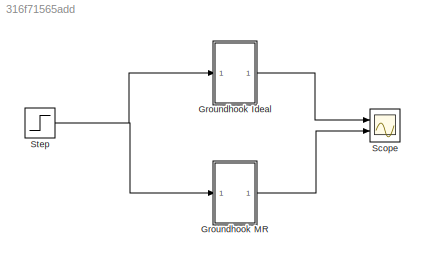
MODEL slx_316f71565add
KIND model
CONFIG AbsTol = auto
CONFIG FixedStep = auto
CONFIG MaxStep = auto
CONFIG MinStep = auto
CONFIG RelTol = 1e-3
CONFIG SampleTimeConstraint = Unconstrained
CONFIG Solver = VariableStepAuto
CONFIG SolverMode = Auto
CONFIG SolverName = VariableStepAuto
CONFIG StartTime = 0.0
CONFIG StopTime = 10.0
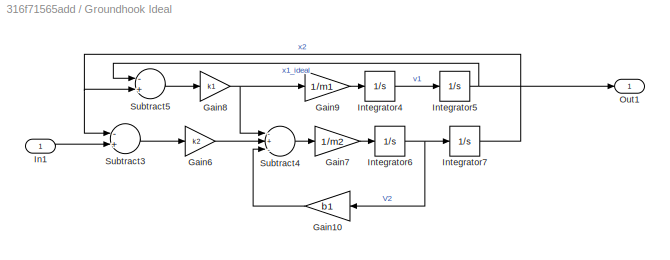
BLOCK [SubSystem] Groundhook Ideal
  Ports = [1, 1]
  RequestExecContextInheritance = off
  Variant = off
BLOCK [Gain] Groundhook Ideal/Gain10
  Gain = b1
  OutDataTypeStr = Inherit: Inherit via internal rule
  ParamDataTypeStr = Inherit: Inherit via internal rule
  SaturateOnIntegerOverflow = off
BLOCK [Gain] Groundhook Ideal/Gain6
  Gain = k2
  OutDataTypeStr = Inherit: Inherit via internal rule
  ParamDataTypeStr = Inherit: Inherit via internal rule
  SaturateOnIntegerOverflow = off
BLOCK [Gain] Groundhook Ideal/Gain7
  Gain = 1/m2
  OutDataTypeStr = Inherit: Inherit via internal rule
  ParamDataTypeStr = Inherit: Inherit via internal rule
  SaturateOnIntegerOverflow = off
BLOCK [Gain] Groundhook Ideal/Gain8
  Gain = k1
  OutDataTypeStr = Inherit: Inherit via internal rule
  ParamDataTypeStr = Inherit: Inherit via internal rule
  SaturateOnIntegerOverflow = off
BLOCK [Gain] Groundhook Ideal/Gain9
  Gain = 1/m1
  OutDataTypeStr = Inherit: Inherit via internal rule
  ParamDataTypeStr = Inherit: Inherit via internal rule
  SaturateOnIntegerOverflow = off
BLOCK [Inport] Groundhook Ideal/In1
  IconDisplay = Port number
BLOCK [Integrator] Groundhook Ideal/Integrator4
  Ports = [1, 1]
BLOCK [Integrator] Groundhook Ideal/Integrator5
  Ports = [1, 1]
BLOCK [Integrator] Groundhook Ideal/Integrator6
  Ports = [1, 1]
BLOCK [Integrator] Groundhook Ideal/Integrator7
  Ports = [1, 1]
BLOCK [Outport] Groundhook Ideal/Out1
  IconDisplay = Port number
BLOCK [Sum] Groundhook Ideal/Subtract3
  InputSameDT = off
  Inputs = -+
  OutDataTypeStr = Inherit: Inherit via internal rule
  Ports = [2, 1]
  SaturateOnIntegerOverflow = off
BLOCK [Sum] Groundhook Ideal/Subtract4
  InputSameDT = off
  Inputs = -+-
  OutDataTypeStr = Inherit: Inherit via internal rule
  Ports = [3, 1]
  SaturateOnIntegerOverflow = off
BLOCK [Sum] Groundhook Ideal/Subtract5
  InputSameDT = off
  Inputs = -+
  OutDataTypeStr = Inherit: Inherit via internal rule
  Ports = [2, 1]
  SaturateOnIntegerOverflow = off
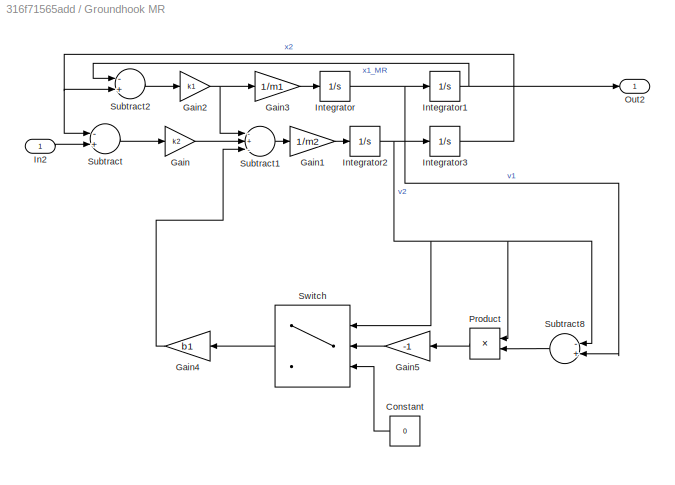
BLOCK [SubSystem] Groundhook MR
  Ports = [1, 1]
  RequestExecContextInheritance = off
  Variant = off
BLOCK [Constant] Groundhook MR/Constant
  Value = 0
BLOCK [Gain] Groundhook MR/Gain
  Gain = k2
  OutDataTypeStr = Inherit: Inherit via internal rule
  ParamDataTypeStr = Inherit: Inherit via internal rule
  SaturateOnIntegerOverflow = off
BLOCK [Gain] Groundhook MR/Gain1
  Gain = 1/m2
  OutDataTypeStr = Inherit: Inherit via internal rule
  ParamDataTypeStr = Inherit: Inherit via internal rule
  SaturateOnIntegerOverflow = off
BLOCK [Gain] Groundhook MR/Gain2
  Gain = k1
  OutDataTypeStr = Inherit: Inherit via internal rule
  ParamDataTypeStr = Inherit: Inherit via internal rule
  SaturateOnIntegerOverflow = off
BLOCK [Gain] Groundhook MR/Gain3
  Gain = 1/m1
  OutDataTypeStr = Inherit: Inherit via internal rule
  ParamDataTypeStr = Inherit: Inherit via internal rule
  SaturateOnIntegerOverflow = off
BLOCK [Gain] Groundhook MR/Gain4
  Gain = b1
  OutDataTypeStr = Inherit: Inherit via internal rule
  ParamDataTypeStr = Inherit: Inherit via internal rule
  SaturateOnIntegerOverflow = off
BLOCK [Gain] Groundhook MR/Gain5
  Gain = -1
  OutDataTypeStr = Inherit: Inherit via internal rule
  ParamDataTypeStr = Inherit: Inherit via internal rule
  SaturateOnIntegerOverflow = off
BLOCK [Inport] Groundhook MR/In2
  IconDisplay = Port number
BLOCK [Integrator] Groundhook MR/Integrator
  Ports = [1, 1]
BLOCK [Integrator] Groundhook MR/Integrator1
  Ports = [1, 1]
BLOCK [Integrator] Groundhook MR/Integrator2
  Ports = [1, 1]
BLOCK [Integrator] Groundhook MR/Integrator3
  Ports = [1, 1]
BLOCK [Outport] Groundhook MR/Out2
  IconDisplay = Port number
BLOCK [Product] Groundhook MR/Product
  InputSameDT = off
  OutDataTypeStr = Inherit: Inherit via internal rule
  Ports = [2, 1]
  RndMeth = Floor
  SaturateOnIntegerOverflow = off
BLOCK [Sum] Groundhook MR/Subtract
  InputSameDT = off
  Inputs = -+
  OutDataTypeStr = Inherit: Inherit via internal rule
  Ports = [2, 1]
  SaturateOnIntegerOverflow = off
BLOCK [Sum] Groundhook MR/Subtract1
  InputSameDT = off
  Inputs = -+-
  OutDataTypeStr = Inherit: Inherit via internal rule
  Ports = [3, 1]
  SaturateOnIntegerOverflow = off
BLOCK [Sum] Groundhook MR/Subtract2
  InputSameDT = off
  Inputs = -+
  OutDataTypeStr = Inherit: Inherit via internal rule
  Ports = [2, 1]
  SaturateOnIntegerOverflow = off
BLOCK [Sum] Groundhook MR/Subtract8
  InputSameDT = off
  Inputs = -+
  OutDataTypeStr = Inherit: Inherit via internal rule
  Ports = [2, 1]
  SaturateOnIntegerOverflow = off
BLOCK [Switch] Groundhook MR/Switch
  InputSameDT = off
  SaturateOnIntegerOverflow = off
  ZeroCross = off
BLOCK [Scope] Scope
  NumInputPorts = 2
  Ports = [2]
  ScopeSpecificationString = Simulink.scopes.TimeScopeBlockCfg('CurrentConfiguration', extmgr.ConfigurationSet(extmgr.Configuration('Core','General UI',true),extmgr.Configuration('Core','Source UI',true),extmgr.Configuration('Sources','WiredSimulink',true),extmgr.Configuration('Visuals','Time Domain',true,'SerializedDisplays',{struct('MinYLimReal','-1.68369','MaxYLimReal','4.17133','YLabelReal','','MinYLimMag','0.00000','MaxY...<+1389ch>
BLOCK [Step] Step
LINE Groundhook Ideal/Gain10:1 -> Groundhook Ideal/Subtract4:3
LINE Groundhook Ideal/Gain6:1 -> Groundhook Ideal/Subtract4:2
LINE Groundhook Ideal/Gain7:1 -> Groundhook Ideal/Integrator6:1
NET Groundhook Ideal/Gain8:1 -> Groundhook Ideal/Gain9:1, Groundhook Ideal/Subtract4:1
LINE Groundhook Ideal/Gain9:1 -> Groundhook Ideal/Integrator4:1
LINE Groundhook Ideal/In1:1 -> Groundhook Ideal/Subtract3:2
LINE Groundhook Ideal/Integrator4:1 -> Groundhook Ideal/Integrator5:1
NET Groundhook Ideal/Integrator5:1 -> Groundhook Ideal/Out1:1, Groundhook Ideal/Subtract5:1
NET Groundhook Ideal/Integrator6:1 -> Groundhook Ideal/Gain10:1, Groundhook Ideal/Integrator7:1
NET Groundhook Ideal/Integrator7:1 -> Groundhook Ideal/Subtract3:1, Groundhook Ideal/Subtract5:2
LINE Groundhook Ideal/Subtract3:1 -> Groundhook Ideal/Gain6:1
LINE Groundhook Ideal/Subtract4:1 -> Groundhook Ideal/Gain7:1
LINE Groundhook Ideal/Subtract5:1 -> Groundhook Ideal/Gain8:1
LINE Groundhook Ideal:1 -> Scope:1
LINE Groundhook MR/Constant:1 -> Groundhook MR/Switch:3
LINE Groundhook MR/Gain1:1 -> Groundhook MR/Integrator2:1
NET Groundhook MR/Gain2:1 -> Groundhook MR/Gain3:1, Groundhook MR/Subtract1:1
LINE Groundhook MR/Gain3:1 -> Groundhook MR/Integrator:1
LINE Groundhook MR/Gain4:1 -> Groundhook MR/Subtract1:3
LINE Groundhook MR/Gain5:1 -> Groundhook MR/Switch:2
LINE Groundhook MR/Gain:1 -> Groundhook MR/Subtract1:2
LINE Groundhook MR/In2:1 -> Groundhook MR/Subtract:2
NET Groundhook MR/Integrator1:1 -> Groundhook MR/Out2:1, Groundhook MR/Subtract2:1
NET Groundhook MR/Integrator2:1 -> Groundhook MR/Integrator3:1, Groundhook MR/Product:1, Groundhook MR/Subtract8:1, Groundhook MR/Switch:1
NET Groundhook MR/Integrator3:1 -> Groundhook MR/Subtract2:2, Groundhook MR/Subtract:1
NET Groundhook MR/Integrator:1 -> Groundhook MR/Integrator1:1, Groundhook MR/Subtract8:2
LINE Groundhook MR/Product:1 -> Groundhook MR/Gain5:1
LINE Groundhook MR/Subtract1:1 -> Groundhook MR/Gain1:1
LINE Groundhook MR/Subtract2:1 -> Groundhook MR/Gain2:1
LINE Groundhook MR/Subtract8:1 -> Groundhook MR/Product:2
LINE Groundhook MR/Subtract:1 -> Groundhook MR/Gain:1
LINE Groundhook MR/Switch:1 -> Groundhook MR/Gain4:1
LINE Groundhook MR:1 -> Scope:2
NET Step:1 -> Groundhook Ideal:1, Groundhook MR:1
note: NET lines group one-source signal fan-out (src -> all destinations, sorted); 1:1 wires keep LINE
